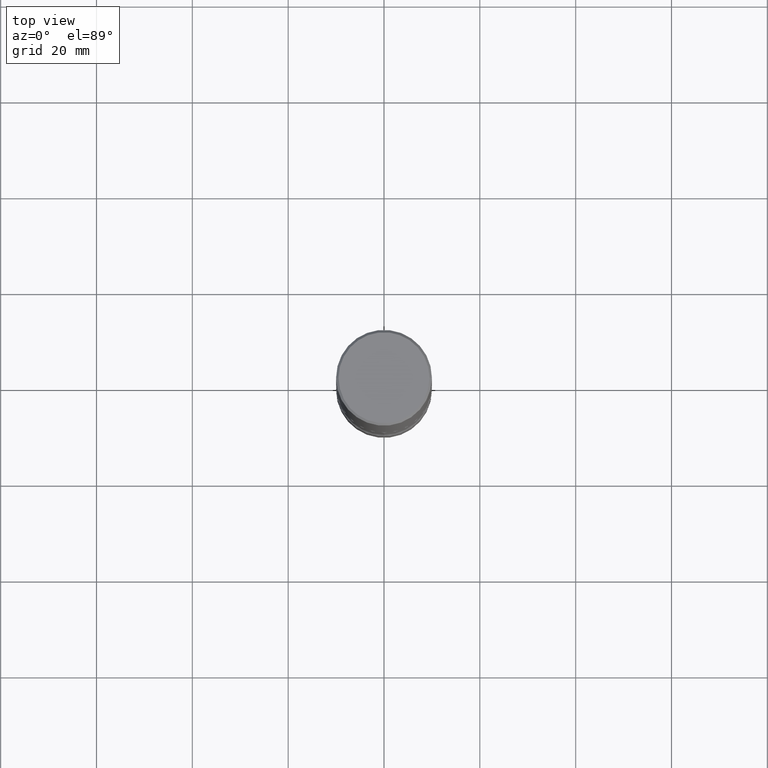
[diagram: clean part render]
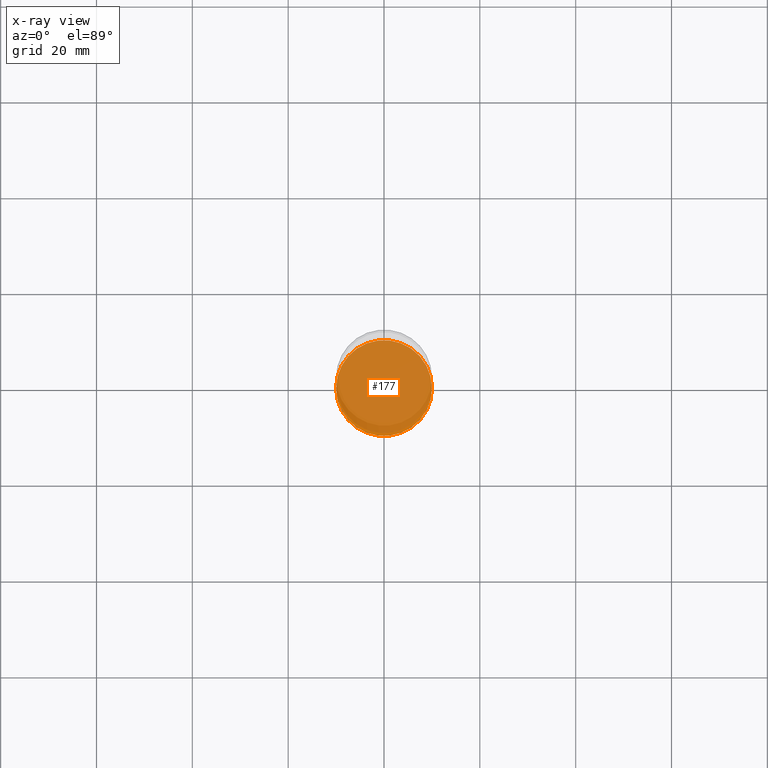
[diagram: x-ray — body ghosted, one internal face saturated and labeled with its STEP entity id]
A machine part, top view, then the same camera in x-ray: the body is ghosted and one INTERNAL B-rep face — a face not visible from any outside direction — is saturated and labeled: STEP entity #177.
In plain terms, the highlighted planar face has unit normal (0, -0, -1).
Its self-contained STEP definition (entity closure, byte-faithful):
#5 = CARTESIAN_POINT ( 'NONE',  ( 0.3937000000000001609, -1.993147037091996521E-14, -4.921199999999998020 ) ) ;
#12 = CARTESIAN_POINT ( 'NONE',  ( 1.203464108899828931E-28, -1.718227796471488199E-14, -4.921199999999998020 ) ) ;
#26 = EDGE_LOOP ( 'NONE', ( #372, #112 ) ) ;
#43 = CARTESIAN_POINT ( 'NONE',  ( 1.203464108899828931E-28, -1.718227796471488199E-14, -4.921199999999998020 ) ) ;
#76 = EDGE_CURVE ( 'NONE', #438, #192, #526, .T. ) ;
#112 = ORIENTED_EDGE ( 'NONE', *, *, #76, .T. ) ;
#121 = DIRECTION ( 'NONE',  ( 1.000000000000000000, -6.982962677686265922E-15, 0.000000000000000000 ) ) ;
#177 = ADVANCED_FACE ( 'NONE', ( #271 ), #398, .F. ) ;
#192 = VERTEX_POINT ( 'NONE', #5 ) ;
#223 = DIRECTION ( 'NONE',  ( 2.438088387897960049E-29, -3.491481338843145188E-15, -1.000000000000000000 ) ) ;
#264 = AXIS2_PLACEMENT_3D ( 'NONE', #43, #337, #121 ) ;
#271 = FACE_OUTER_BOUND ( 'NONE', #26, .T. ) ;
#296 = EDGE_CURVE ( 'NONE', #192, #438, #410, .T. ) ;
#317 = CARTESIAN_POINT ( 'NONE',  ( 1.203464108899828931E-28, -1.718227796471488199E-14, -4.921199999999998020 ) ) ;
#323 = DIRECTION ( 'NONE',  ( -2.445468806185136597E-29, 3.491481338843145583E-15, 1.000000000000000000 ) ) ;
#337 = DIRECTION ( 'NONE',  ( -2.445468806185136597E-29, 3.491481338843145583E-15, 1.000000000000000000 ) ) ;
#341 = CARTESIAN_POINT ( 'NONE',  ( -0.3937000000000001609, -1.582824959950512552E-14, -4.921199999999998020 ) ) ;
#372 = ORIENTED_EDGE ( 'NONE', *, *, #296, .T. ) ;
#394 = DIRECTION ( 'NONE',  ( -1.000000000000000000, 6.982962677686265922E-15, -4.876176775795935793E-29 ) ) ;
#398 = PLANE ( 'NONE',  #434 ) ;
#410 = CIRCLE ( 'NONE', #528, 0.3937000000000001609 ) ;
#434 = AXIS2_PLACEMENT_3D ( 'NONE', #12, #223, #394 ) ;
#438 = VERTEX_POINT ( 'NONE', #341 ) ;
#501 = DIRECTION ( 'NONE',  ( 1.000000000000000000, -6.982962677686265922E-15, 0.000000000000000000 ) ) ;
#526 = CIRCLE ( 'NONE', #264, 0.3937000000000001609 ) ;
#528 = AXIS2_PLACEMENT_3D ( 'NONE', #317, #323, #501 ) ;